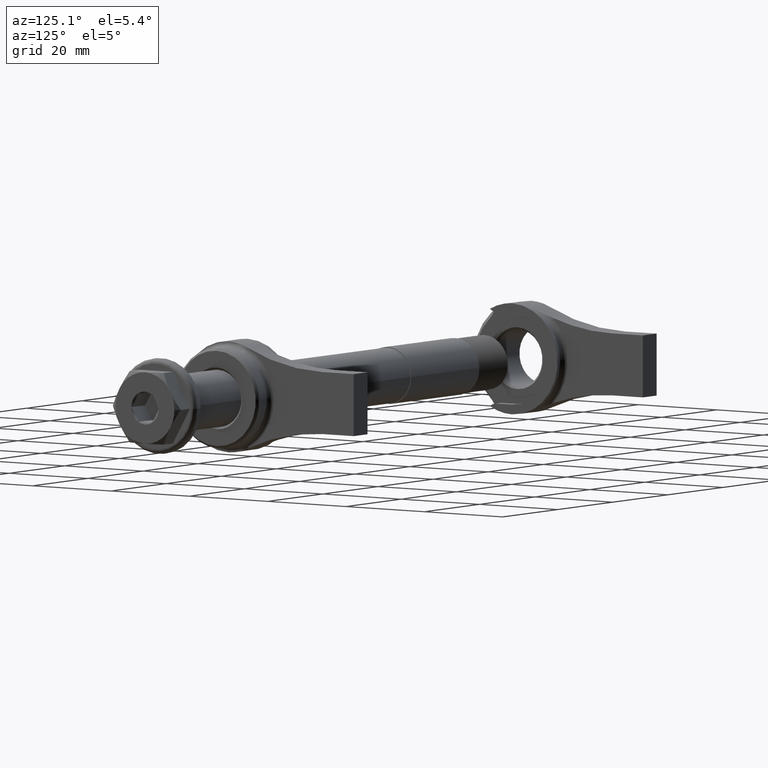
[diagram: clean part render]
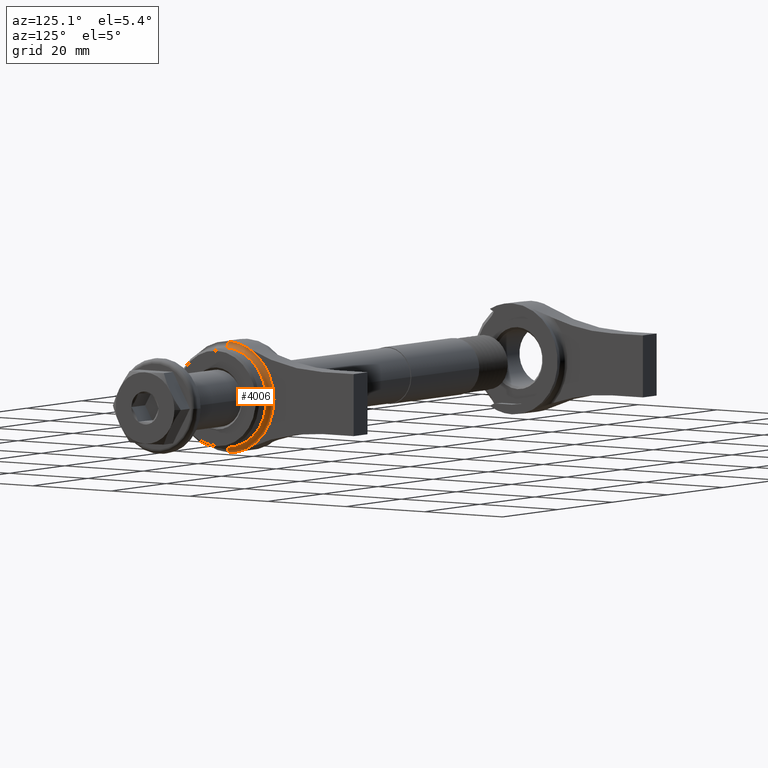
[diagram: same view with one face highlighted and labeled with its STEP entity id]
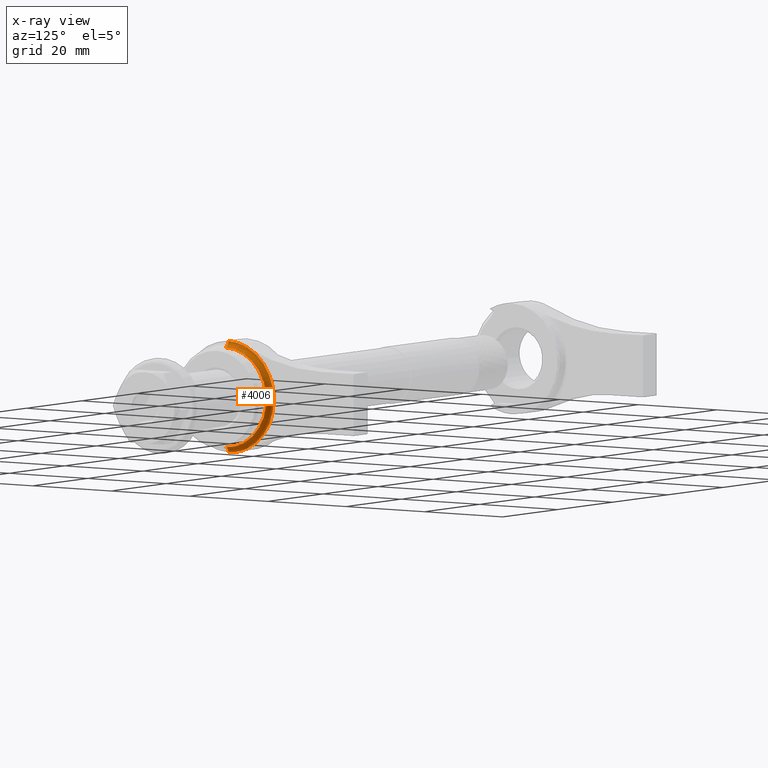
[diagram: x-ray of the same camera — body ghosted, the highlighted face saturated]
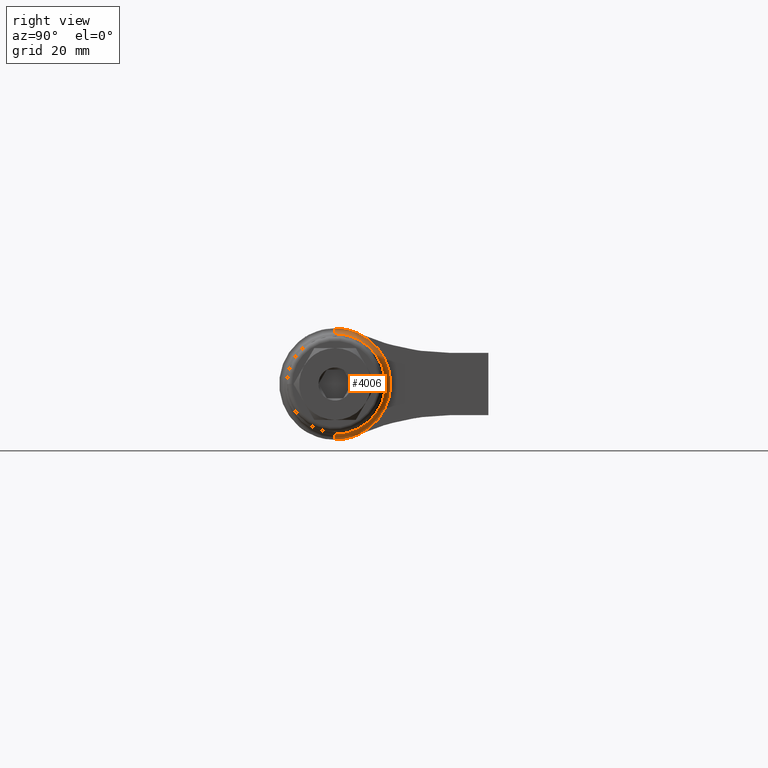
[diagram: same view with one face highlighted and labeled with its STEP entity id]
A machine part, auxiliary view. The second image highlights one B-rep face of the part: STEP entity #4006.
The next image is the same camera in x-ray: the body ghosted, the highlighted face saturated — about 0% of this face is hidden behind the body in this view.
A second angle (right view) of the same face is appended — the face is thin or edge-on in the first view.
In plain terms, the highlighted toroidal blend (fillet) surface has major radius 11.643 mm and minor (blend) radius 1.143 mm.
Its self-contained STEP definition (entity closure, byte-faithful):
#15 = CARTESIAN_POINT ( 'NONE',  ( 7.000000000000006200, 0.0000000000000000000, 0.0000000000000000000 ) ) ;
#143 = CIRCLE ( 'NONE', #3036, 1.143000000000000000 ) ;
#150 = CARTESIAN_POINT ( 'NONE',  ( 7.000000000000006200, 1.425856268247263200E-015, -11.64299999999999900 ) ) ;
#154 = VERTEX_POINT ( 'NONE', #150 ) ;
#207 = CARTESIAN_POINT ( 'NONE',  ( 8.142999999999997100, 0.0000000000000000000, 0.0000000000000000000 ) ) ;
#275 = ORIENTED_EDGE ( 'NONE', *, *, #1344, .T. ) ;
#316 = ORIENTED_EDGE ( 'NONE', *, *, #1888, .F. ) ;
#368 = VERTEX_POINT ( 'NONE', #1672 ) ;
#427 = CARTESIAN_POINT ( 'NONE',  ( 8.142999999999997100, 0.0000000000000000000, 10.50000000000000000 ) ) ;
#519 = VERTEX_POINT ( 'NONE', #1632 ) ;
#612 = EDGE_CURVE ( 'NONE', #154, #519, #3981, .T. ) ;
#646 = VERTEX_POINT ( 'NONE', #4297 ) ;
#694 = DIRECTION ( 'NONE',  ( 1.000000000000000000, 0.0000000000000000000, 0.0000000000000000000 ) ) ;
#714 = CARTESIAN_POINT ( 'NONE',  ( 8.142999999999997100, 0.0000000000000000000, 0.0000000000000000000 ) ) ;
#811 = DIRECTION ( 'NONE',  ( 0.0000000000000000000, 0.0000000000000000000, -1.000000000000000000 ) ) ;
#814 = CARTESIAN_POINT ( 'NONE',  ( 7.000000000000006200, 0.0000000000000000000, 11.64299999999999900 ) ) ;
#826 = CARTESIAN_POINT ( 'NONE',  ( 7.000000000000006200, 0.0000000000000000000, 0.0000000000000000000 ) ) ;
#897 = CARTESIAN_POINT ( 'NONE',  ( 8.142999999999997100, 1.425856268247263400E-015, -11.64300000000000100 ) ) ;
#932 = DIRECTION ( 'NONE',  ( -1.000000000000000000, -0.0000000000000000000, 0.0000000000000000000 ) ) ;
#1117 = DIRECTION ( 'NONE',  ( 0.0000000000000000000, 0.0000000000000000000, 1.000000000000000000 ) ) ;
#1170 = DIRECTION ( 'NONE',  ( 0.0000000000000000000, 0.0000000000000000000, 1.000000000000000000 ) ) ;
#1246 = AXIS2_PLACEMENT_3D ( 'NONE', #207, #932, #1170 ) ;
#1280 = EDGE_CURVE ( 'NONE', #519, #4418, #4116, .T. ) ;
#1321 = ORIENTED_EDGE ( 'NONE', *, *, #1280, .F. ) ;
#1344 = EDGE_CURVE ( 'NONE', #2504, #4418, #143, .T. ) ;
#1632 = CARTESIAN_POINT ( 'NONE',  ( 8.142999999999997100, 1.285879139104720800E-015, -10.50000000000000000 ) ) ;
#1636 = AXIS2_PLACEMENT_3D ( 'NONE', #897, #2579, #2239 ) ;
#1672 = CARTESIAN_POINT ( 'NONE',  ( 7.000000000000006200, 4.770911129323436300, 10.62063350257872700 ) ) ;
#1745 = AXIS2_PLACEMENT_3D ( 'NONE', #826, #2478, #1117 ) ;
#1811 = DIRECTION ( 'NONE',  ( 0.0000000000000000000, 0.0000000000000000000, -1.000000000000000000 ) ) ;
#1888 = EDGE_CURVE ( 'NONE', #368, #646, #4083, .T. ) ;
#1983 = CIRCLE ( 'NONE', #4279, 11.64299999999999900 ) ;
#2081 = AXIS2_PLACEMENT_3D ( 'NONE', #2764, #694, #1811 ) ;
#2086 = TOROIDAL_SURFACE ( 'NONE', #1246, 11.64300000000000100, 1.143000000000000000 ) ;
#2134 = AXIS2_PLACEMENT_3D ( 'NONE', #714, #3085, #2773 ) ;
#2144 = DIRECTION ( 'NONE',  ( 0.0000000000000000000, -1.000000000000000000, 0.0000000000000000000 ) ) ;
#2168 = EDGE_CURVE ( 'NONE', #154, #646, #1983, .T. ) ;
#2239 = DIRECTION ( 'NONE',  ( 0.0000000000000000000, -1.224646799147353000E-016, 1.000000000000000000 ) ) ;
#2357 = EDGE_CURVE ( 'NONE', #368, #2504, #2614, .T. ) ;
#2370 = ORIENTED_EDGE ( 'NONE', *, *, #2357, .T. ) ;
#2435 = ORIENTED_EDGE ( 'NONE', *, *, #2168, .T. ) ;
#2470 = EDGE_LOOP ( 'NONE', ( #3013, #2435, #316, #2370, #275, #1321 ) ) ;
#2473 = CARTESIAN_POINT ( 'NONE',  ( 8.142999999999997100, 0.0000000000000000000, 11.64300000000000100 ) ) ;
#2478 = DIRECTION ( 'NONE',  ( -1.000000000000000000, -0.0000000000000000000, 0.0000000000000000000 ) ) ;
#2504 = VERTEX_POINT ( 'NONE', #814 ) ;
#2579 = DIRECTION ( 'NONE',  ( 0.0000000000000000000, 1.000000000000000000, 1.224646799147353200E-016 ) ) ;
#2614 = CIRCLE ( 'NONE', #2081, 11.64299999999999900 ) ;
#2714 = FACE_OUTER_BOUND ( 'NONE', #2470, .T. ) ;
#2764 = CARTESIAN_POINT ( 'NONE',  ( 7.000000000000006200, 0.0000000000000000000, 0.0000000000000000000 ) ) ;
#2773 = DIRECTION ( 'NONE',  ( 0.0000000000000000000, 0.0000000000000000000, 1.000000000000000000 ) ) ;
#3013 = ORIENTED_EDGE ( 'NONE', *, *, #612, .F. ) ;
#3036 = AXIS2_PLACEMENT_3D ( 'NONE', #2473, #2144, #4050 ) ;
#3045 = DIRECTION ( 'NONE',  ( 1.000000000000000000, 0.0000000000000000000, 0.0000000000000000000 ) ) ;
#3085 = DIRECTION ( 'NONE',  ( 1.000000000000000000, 0.0000000000000000000, -0.0000000000000000000 ) ) ;
#3981 = CIRCLE ( 'NONE', #1636, 1.143000000000000000 ) ;
#4006 = ADVANCED_FACE ( 'NONE', ( #2714 ), #2086, .F. ) ;
#4050 = DIRECTION ( 'NONE',  ( 0.0000000000000000000, 0.0000000000000000000, -1.000000000000000000 ) ) ;
#4083 = CIRCLE ( 'NONE', #1745, 11.64300000000000100 ) ;
#4116 = CIRCLE ( 'NONE', #2134, 10.50000000000000000 ) ;
#4279 = AXIS2_PLACEMENT_3D ( 'NONE', #15, #3045, #811 ) ;
#4297 = CARTESIAN_POINT ( 'NONE',  ( 7.000000000000006200, 4.770911129323430100, -10.62063350257873200 ) ) ;
#4418 = VERTEX_POINT ( 'NONE', #427 ) ;